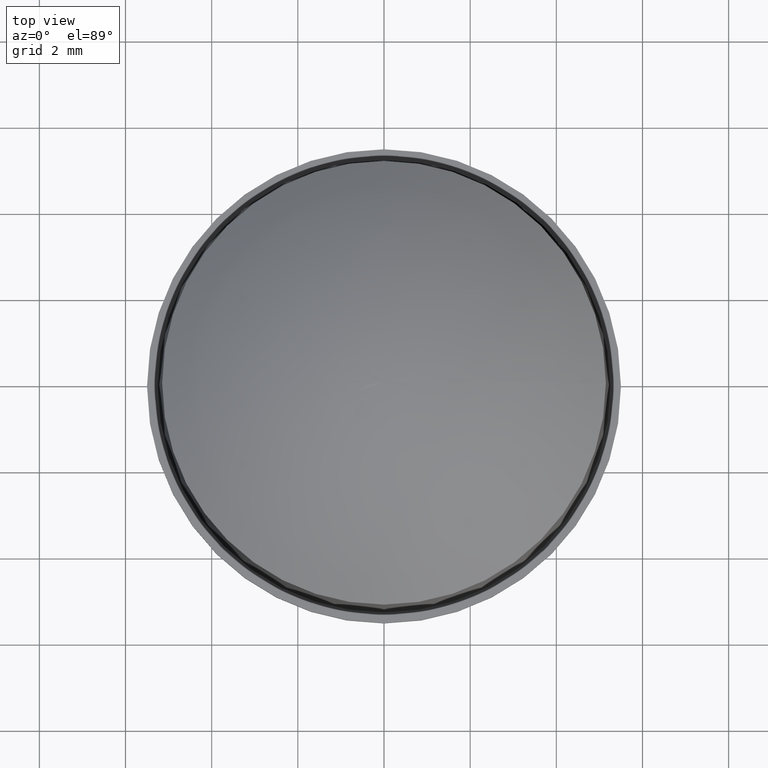
[diagram: clean part render]
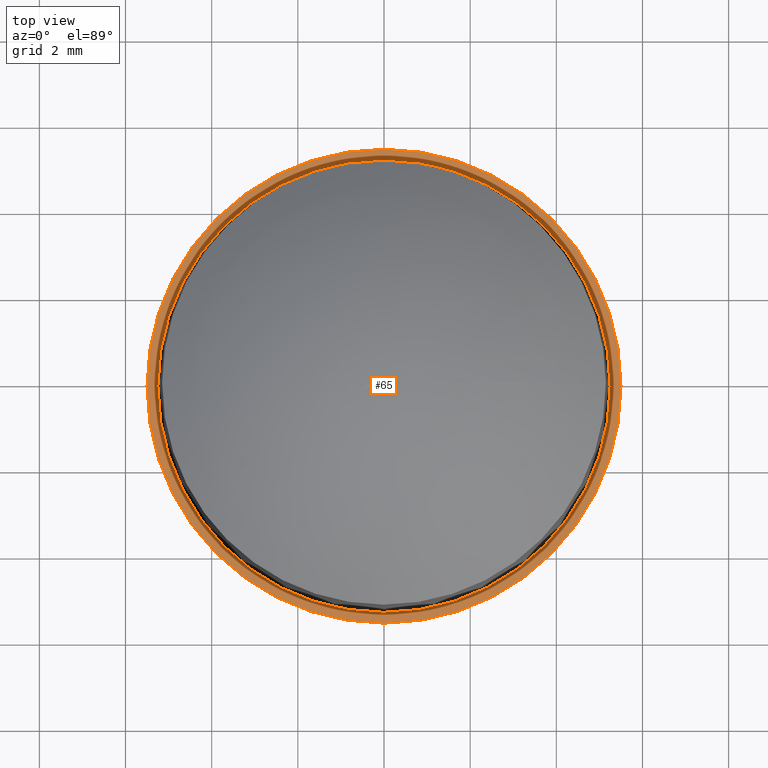
[diagram: same view with one face highlighted and labeled with its STEP entity id]
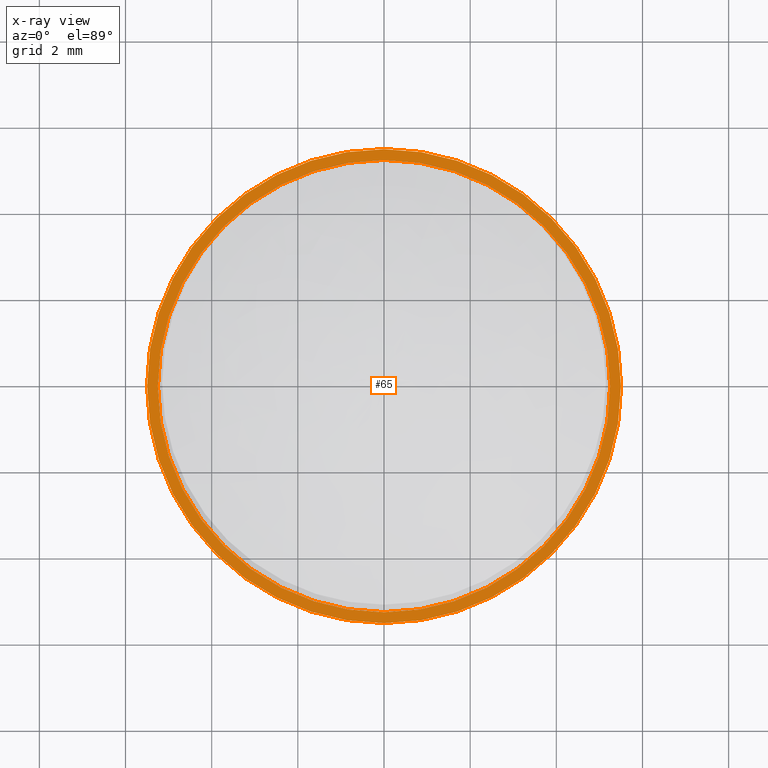
[diagram: x-ray of the same camera — body ghosted, the highlighted face saturated]
A machine part, top view. The second image highlights one B-rep face of the part: STEP entity #65.
The next image is the same camera in x-ray: the body ghosted, the highlighted face saturated — about 0% of this face is hidden behind the body in this view.
In plain terms, the highlighted planar face has unit normal (0, 0, 1).
Its self-contained STEP definition (entity closure, byte-faithful):
#16=PLANE('',#75);
#20=FACE_BOUND('',#34,.T.);
#26=FACE_OUTER_BOUND('',#33,.T.);
#33=EDGE_LOOP('',(#58));
#34=EDGE_LOOP('',(#59));
#37=CIRCLE('',#70,5.25);
#38=CIRCLE('',#72,5.5);
#42=VERTEX_POINT('',#163);
#43=VERTEX_POINT('',#166);
#47=EDGE_CURVE('',#42,#42,#37,.T.);
#48=EDGE_CURVE('',#43,#43,#38,.T.);
#58=ORIENTED_EDGE('',*,*,#48,.T.);
#59=ORIENTED_EDGE('',*,*,#47,.T.);
#65=ADVANCED_FACE('',(#26,#20),#16,.T.);
#70=AXIS2_PLACEMENT_3D('',#164,#82,#83);
#72=AXIS2_PLACEMENT_3D('',#167,#86,#87);
#75=AXIS2_PLACEMENT_3D('',#171,#92,#93);
#82=DIRECTION('center_axis',(0.,0.,-1.));
#83=DIRECTION('ref_axis',(-1.,0.,0.));
#86=DIRECTION('center_axis',(0.,0.,1.));
#87=DIRECTION('ref_axis',(-1.,0.,0.));
#92=DIRECTION('center_axis',(0.,0.,1.));
#93=DIRECTION('ref_axis',(1.,0.,0.));
#163=CARTESIAN_POINT('',(-5.25,0.,0.5));
#164=CARTESIAN_POINT('Origin',(0.,0.,0.5));
#166=CARTESIAN_POINT('',(5.5,6.73555739531044E-16,0.5));
#167=CARTESIAN_POINT('Origin',(0.,0.,0.5));
#171=CARTESIAN_POINT('Origin',(-2.24345254752611E-16,8.41078048958452E-17,
0.5));